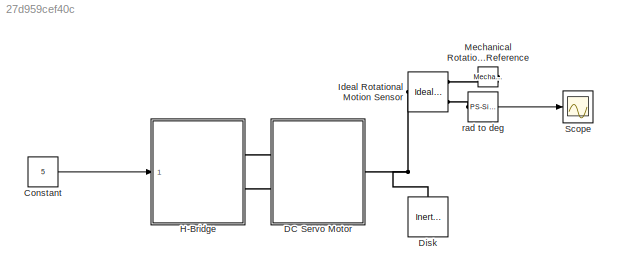
MODEL slx_27d959cef40c
KIND model
CONFIG AbsTol = auto
CONFIG EnableMultiTasking = off
CONFIG FixedStep = auto
CONFIG MaxStep = auto
CONFIG MinStep = auto
CONFIG RelTol = 1e-3
CONFIG SampleTimeConstraint = Unconstrained
CONFIG Solver = VariableStepAuto
CONFIG SolverName = VariableStepAuto
CONFIG StartTime = 0.0
CONFIG StopTime = 10
BLOCK [Constant] Constant
  Value = 5
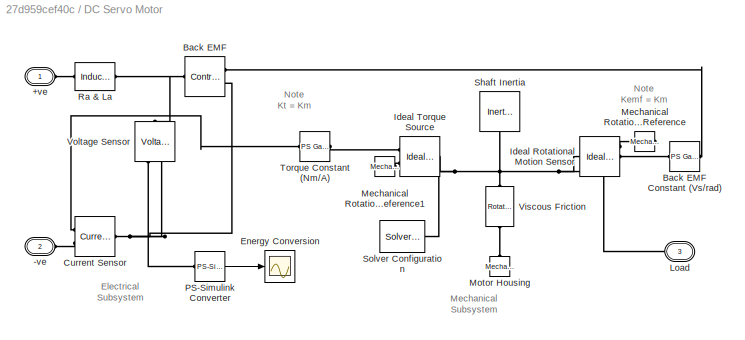
BLOCK [SubSystem] DC Servo Motor
  Ports = [0, 0, 0, 0, 0, 2, 1]
  RequestExecContextInheritance = off
BLOCK [PMIOPort] DC Servo Motor/+ve
  Side = Left
  Tag = PMCPort
BLOCK [PMIOPort] DC Servo Motor/-ve
  Port = 2
  Side = Left
  Tag = PMCPort
BLOCK [Reference] DC Servo Motor/Back EMF  REF=fl_lib/Electrical/Electrical Sources/Controlled Voltage
Source
  Ports = [0, 0, 0, 0, 0, 1, 2]
  SourceBlock = fl_lib/Electrical/Electrical Sources/Controlled Voltage\nSource
  SourceProductBaseCode = SS
  SourceProductName = Simscape
  SourceType = Controlled Voltage\nSource
BLOCK [Reference] DC Servo Motor/Back EMF Constant (Vs//rad)  REF=fl_ps_legacy_lib/Legacy Physical
Signals/Functions/PS Gain
  Ports = [0, 0, 0, 0, 0, 1, 1]
  SourceBlock = fl_ps_legacy_lib/Legacy Physical\nSignals/Functions/PS Gain
  SourceProductBaseCode = SS
  SourceProductName = Simscape
  SourceType = PS Gain
BLOCK [Reference] DC Servo Motor/Current Sensor  REF=fl_lib/Electrical/Electrical Sensors/Current Sensor
  Ports = [0, 0, 0, 0, 0, 1, 2]
  SourceBlock = fl_lib/Electrical/Electrical Sensors/Current Sensor
  SourceProductBaseCode = SS
  SourceProductName = Simscape
  SourceType = Current Sensor
BLOCK [Scope] DC Servo Motor/Energy Conversion
  Floating = off
  NumInputPorts = 1
  Ports = [1]
  ScopeSpecificationString = Simulink.scopes.TimeScopeBlockCfg('CurrentConfiguration', extmgr.ConfigurationSet(extmgr.Configuration('Core','General UI',true),extmgr.Configuration('Core','Source UI',true),extmgr.Configuration('Sources','WiredSimulink',true,'DataLoggingVariableName','ScopeData11','DataLoggingSaveFormat','StructureWithTime','DataLoggingDecimation','1','DataLoggingDecimateData',true),extmgr.Configuration('Visuals...<+1727ch>
BLOCK [Reference] DC Servo Motor/Ideal Rotational Motion Sensor  REF=fl_lib/Mechanical/Mechanical Sensors/Ideal Rotational
Motion Sensor
  Ports = [0, 0, 0, 0, 0, 1, 3]
  SourceBlock = fl_lib/Mechanical/Mechanical Sensors/Ideal Rotational\nMotion Sensor
  SourceProductBaseCode = SS
  SourceProductName = Simscape
  SourceType = Ideal Rotational\nMotion Sensor
BLOCK [Reference] DC Servo Motor/Ideal Torque Source  REF=fl_lib/Mechanical/Mechanical Sources/Ideal Torque Source
  Ports = [0, 0, 0, 0, 0, 1, 2]
  SourceBlock = fl_lib/Mechanical/Mechanical Sources/Ideal Torque Source
  SourceProductBaseCode = SS
  SourceProductName = Simscape
  SourceType = Ideal Torque Source
BLOCK [PMIOPort] DC Servo Motor/Load
  Port = 3
  Side = Right
BLOCK [Reference] DC Servo Motor/Mechanical Rotational Reference  REF=fl_lib/Mechanical/Rotational Elements/Mechanical
Rotational Reference
  Ports = [0, 0, 0, 0, 0, 1]
  SourceBlock = fl_lib/Mechanical/Rotational Elements/Mechanical\nRotational Reference
  SourceProductBaseCode = SS
  SourceProductName = Simscape
  SourceType = Mechanical\nRotational Reference
BLOCK [Reference] DC Servo Motor/Mechanical Rotational Reference1  REF=fl_lib/Mechanical/Rotational Elements/Mechanical
Rotational Reference
  Ports = [0, 0, 0, 0, 0, 1]
  SourceBlock = fl_lib/Mechanical/Rotational Elements/Mechanical\nRotational Reference
  SourceProductBaseCode = SS
  SourceProductName = Simscape
  SourceType = Mechanical\nRotational Reference
BLOCK [Reference] DC Servo Motor/Motor Housing  REF=fl_lib/Mechanical/Rotational Elements/Mechanical
Rotational Reference
  Ports = [0, 0, 0, 0, 0, 1]
  SourceBlock = fl_lib/Mechanical/Rotational Elements/Mechanical\nRotational Reference
  SourceProductBaseCode = SS
  SourceProductName = Simscape
  SourceType = Mechanical\nRotational Reference
BLOCK [Reference] DC Servo Motor/PS-Simulink Converter  REF=nesl_utility/PS-Simulink
Converter
  Ports = [0, 1, 0, 0, 0, 1]
  SourceBlock = nesl_utility/PS-Simulink\nConverter
  SourceProductBaseCode = SS
  SourceProductName = Simscape
  SourceType = PS-Simulink\nConverter
BLOCK [Reference] DC Servo Motor/Ra & La  REF=fl_lib/Electrical/Electrical Elements/Inductor
  Ports = [0, 0, 0, 0, 0, 1, 1]
  SourceBlock = fl_lib/Electrical/Electrical Elements/Inductor
  SourceProductBaseCode = SS
  SourceProductName = Simscape
  SourceType = Inductor
BLOCK [Reference] DC Servo Motor/Shaft Inertia  REF=fl_lib/Mechanical/Rotational Elements/Inertia
  Ports = [0, 0, 0, 0, 0, 1]
  SourceBlock = fl_lib/Mechanical/Rotational Elements/Inertia
  SourceProductBaseCode = SS
  SourceProductName = Simscape
  SourceType = Inertia
BLOCK [Reference] DC Servo Motor/Solver Configuration  REF=nesl_utility/Solver
Configuration
  Ports = [0, 0, 0, 0, 0, 0, 1]
  SourceBlock = nesl_utility/Solver\nConfiguration
  SourceProductBaseCode = SS
  SourceProductName = Simscape
  SourceType = Solver\nConfiguration
BLOCK [Reference] DC Servo Motor/Torque Constant (Nm//A)  REF=fl_ps_legacy_lib/Legacy Physical
Signals/Functions/PS Gain
  Ports = [0, 0, 0, 0, 0, 1, 1]
  SourceBlock = fl_ps_legacy_lib/Legacy Physical\nSignals/Functions/PS Gain
  SourceProductBaseCode = SS
  SourceProductName = Simscape
  SourceType = PS Gain
BLOCK [Reference] DC Servo Motor/Viscous Friction  REF=fl_lib/Mechanical/Rotational Elements/Rotational Damper
  Ports = [0, 0, 0, 0, 0, 1, 1]
  SourceBlock = fl_lib/Mechanical/Rotational Elements/Rotational Damper
  SourceProductBaseCode = SS
  SourceProductName = Simscape
  SourceType = Rotational Damper
BLOCK [Reference] DC Servo Motor/Voltage Sensor  REF=fl_lib/Electrical/Electrical Sensors/Voltage Sensor
  Ports = [0, 0, 0, 0, 0, 1, 2]
  SourceBlock = fl_lib/Electrical/Electrical Sensors/Voltage Sensor
  SourceProductBaseCode = SS
  SourceProductName = Simscape
  SourceType = Voltage Sensor
BLOCK [Reference] Disk  REF=fl_lib/Mechanical/Rotational Elements/Inertia
  Ports = [0, 0, 0, 0, 0, 1]
  SourceBlock = fl_lib/Mechanical/Rotational Elements/Inertia
  SourceProductBaseCode = SS
  SourceProductName = Simscape
  SourceType = Inertia
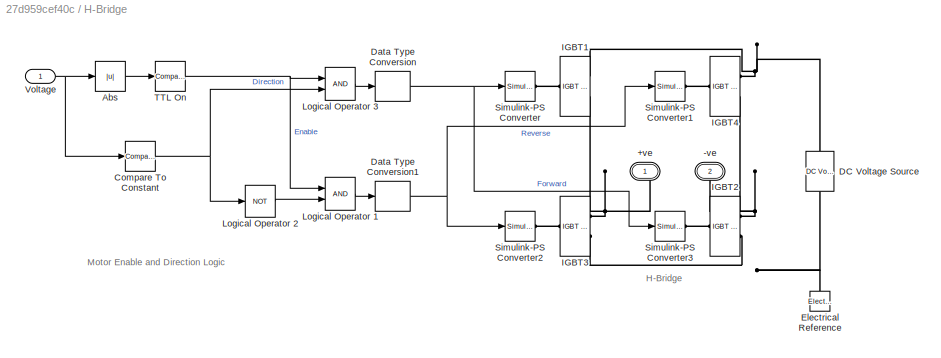
BLOCK [SubSystem] H-Bridge
  Ports = [1, 0, 0, 0, 0, 0, 2]
  RequestExecContextInheritance = off
BLOCK [PMIOPort] H-Bridge/+ve
  Side = Right
  Tag = PMCPort
BLOCK [PMIOPort] H-Bridge/-ve
  Port = 2
  Side = Right
  Tag = PMCPort
BLOCK [Abs] H-Bridge/Abs
  SaturateOnIntegerOverflow = off
BLOCK [Reference] H-Bridge/Compare To Constant  REF=simulink/Logic and Bit
Operations/Compare
To Constant
  Ports = [1, 1]
  SourceBlock = simulink/Logic and Bit\nOperations/Compare\nTo Constant
  SourceProductBaseCode = SL
  SourceProductName = Simulink
  SourceType = Compare To Constant
BLOCK [Reference] H-Bridge/DC Voltage Source  REF=fl_lib/Electrical/Electrical Sources/DC Voltage Source
  Ports = [0, 0, 0, 0, 0, 1, 1]
  SourceBlock = fl_lib/Electrical/Electrical Sources/DC Voltage Source
  SourceProductBaseCode = SS
  SourceProductName = Simscape
  SourceType = DC Voltage Source
BLOCK [DataTypeConversion] H-Bridge/Data Type Conversion
  OutDataTypeStr = double
  RndMeth = Floor
  SaturateOnIntegerOverflow = off
BLOCK [DataTypeConversion] H-Bridge/Data Type Conversion1
  OutDataTypeStr = double
  RndMeth = Floor
  SaturateOnIntegerOverflow = off
BLOCK [Reference] H-Bridge/Electrical Reference  REF=fl_lib/Electrical/Electrical Elements/Electrical Reference
  Ports = [0, 0, 0, 0, 0, 1]
  SourceBlock = fl_lib/Electrical/Electrical Elements/Electrical Reference
  SourceProductBaseCode = SS
  SourceProductName = Simscape
  SourceType = Electrical Reference
BLOCK [Reference] H-Bridge/IGBT1  REF=ee_lib/Semiconductors &
Converters/IGBT
(Ideal,
Switching)
  Ports = [0, 0, 0, 0, 0, 1, 2]
  SourceBlock = ee_lib/Semiconductors &\nConverters/IGBT\n(Ideal,\nSwitching)
  SourceProductBaseCode = PS
  SourceProductName = Simscape Electrical
  SourceType = IGBT\n(Ideal,\nSwitching)
BLOCK [Reference] H-Bridge/IGBT2  REF=ee_lib/Semiconductors &
Converters/IGBT
(Ideal,
Switching)
  Ports = [0, 0, 0, 0, 0, 1, 2]
  SourceBlock = ee_lib/Semiconductors &\nConverters/IGBT\n(Ideal,\nSwitching)
  SourceProductBaseCode = PS
  SourceProductName = Simscape Electrical
  SourceType = IGBT\n(Ideal,\nSwitching)
BLOCK [Reference] H-Bridge/IGBT3  REF=ee_lib/Semiconductors &
Converters/IGBT
(Ideal,
Switching)
  Ports = [0, 0, 0, 0, 0, 1, 2]
  SourceBlock = ee_lib/Semiconductors &\nConverters/IGBT\n(Ideal,\nSwitching)
  SourceProductBaseCode = PS
  SourceProductName = Simscape Electrical
  SourceType = IGBT\n(Ideal,\nSwitching)
BLOCK [Reference] H-Bridge/IGBT4  REF=ee_lib/Semiconductors &
Converters/IGBT
(Ideal,
Switching)
  Ports = [0, 0, 0, 0, 0, 1, 2]
  SourceBlock = ee_lib/Semiconductors &\nConverters/IGBT\n(Ideal,\nSwitching)
  SourceProductBaseCode = PS
  SourceProductName = Simscape Electrical
  SourceType = IGBT\n(Ideal,\nSwitching)
BLOCK [Logic] H-Bridge/Logical Operator 1
  AllPortsSameDT = off
  OutDataTypeStr = boolean
  Ports = [2, 1]
BLOCK [Logic] H-Bridge/Logical Operator 2
  AllPortsSameDT = off
  Operator = NOT
  OutDataTypeStr = boolean
  Ports = [1, 1]
BLOCK [Logic] H-Bridge/Logical Operator 3
  AllPortsSameDT = off
  OutDataTypeStr = boolean
  Ports = [2, 1]
BLOCK [Reference] H-Bridge/Simulink-PS Converter  REF=nesl_utility/Simulink-PS
Converter
  Ports = [1, 0, 0, 0, 0, 0, 1]
  SourceBlock = nesl_utility/Simulink-PS\nConverter
  SourceProductBaseCode = SS
  SourceProductName = Simscape
  SourceType = Simulink-PS\nConverter
BLOCK [Reference] H-Bridge/Simulink-PS Converter1  REF=nesl_utility/Simulink-PS
Converter
  Ports = [1, 0, 0, 0, 0, 0, 1]
  SourceBlock = nesl_utility/Simulink-PS\nConverter
  SourceProductBaseCode = SS
  SourceProductName = Simscape
  SourceType = Simulink-PS\nConverter
BLOCK [Reference] H-Bridge/Simulink-PS Converter2  REF=nesl_utility/Simulink-PS
Converter
  Ports = [1, 0, 0, 0, 0, 0, 1]
  SourceBlock = nesl_utility/Simulink-PS\nConverter
  SourceProductBaseCode = SS
  SourceProductName = Simscape
  SourceType = Simulink-PS\nConverter
BLOCK [Reference] H-Bridge/Simulink-PS Converter3  REF=nesl_utility/Simulink-PS
Converter
  Ports = [1, 0, 0, 0, 0, 0, 1]
  SourceBlock = nesl_utility/Simulink-PS\nConverter
  SourceProductBaseCode = SS
  SourceProductName = Simscape
  SourceType = Simulink-PS\nConverter
BLOCK [Reference] H-Bridge/TTL On  REF=simulink/Logic and Bit
Operations/Compare
To Constant
  Ports = [1, 1]
  SourceBlock = simulink/Logic and Bit\nOperations/Compare\nTo Constant
  SourceProductBaseCode = SL
  SourceProductName = Simulink
  SourceType = Compare To Constant
BLOCK [Inport] H-Bridge/Voltage
  IconDisplay = Port number
BLOCK [Reference] Ideal Rotational Motion Sensor  REF=fl_lib/Mechanical/Mechanical Sensors/Ideal Rotational
Motion Sensor
  Ports = [0, 0, 0, 0, 0, 1, 3]
  SourceBlock = fl_lib/Mechanical/Mechanical Sensors/Ideal Rotational\nMotion Sensor
  SourceProductBaseCode = SS
  SourceProductName = Simscape
  SourceType = Ideal Rotational\nMotion Sensor
BLOCK [Reference] Mechanical Rotational Reference  REF=fl_lib/Mechanical/Rotational Elements/Mechanical
Rotational Reference
  Ports = [0, 0, 0, 0, 0, 1]
  SourceBlock = fl_lib/Mechanical/Rotational Elements/Mechanical\nRotational Reference
  SourceProductBaseCode = SS
  SourceProductName = Simscape
  SourceType = Mechanical\nRotational Reference
BLOCK [Scope] Scope
  Floating = off
  NumInputPorts = 1
  Ports = [1]
  ScopeSpecificationString = Simulink.scopes.TimeScopeBlockCfg('CurrentConfiguration', extmgr.ConfigurationSet(extmgr.Configuration('Core','General UI',true),extmgr.Configuration('Core','Source UI',true),extmgr.Configuration('Sources','WiredSimulink',true,'DataLoggingVariableName','ScopeData1','DataLoggingSaveFormat','StructureWithTime','DataLoggingDecimation','1','DataLoggingDecimateData',true),extmgr.Configuration('Visuals'...<+1703ch>
BLOCK [Reference] rad to deg  REF=nesl_utility/PS-Simulink
Converter
  Ports = [0, 1, 0, 0, 0, 1]
  SourceBlock = nesl_utility/PS-Simulink\nConverter
  SourceProductBaseCode = SS
  SourceProductName = Simscape
  SourceType = PS-Simulink\nConverter
ANNOTATION DC Servo Motor: Electrical Subsystem
ANNOTATION DC Servo Motor: Mechanical Subsystem
ANNOTATION DC Servo Motor: Note Kemf = Km
ANNOTATION DC Servo Motor: Note Kt = Km
ANNOTATION H-Bridge: H-Bridge
ANNOTATION H-Bridge: Motor Enable and Direction Logic
LINE Constant:1 -> H-Bridge:1
LINE DC Servo Motor/PS-Simulink Converter:1 -> DC Servo Motor/Energy Conversion:1
LINE H-Bridge/Abs:1 -> H-Bridge/TTL On:1
NET H-Bridge/Compare To Constant:1 -> H-Bridge/Logical Operator 2:1, H-Bridge/Logical Operator 3:2
NET H-Bridge/Data Type Conversion1:1 -> H-Bridge/Simulink-PS Converter1:1, H-Bridge/Simulink-PS Converter2:1
NET H-Bridge/Data Type Conversion:1 -> H-Bridge/Simulink-PS Converter3:1, H-Bridge/Simulink-PS Converter:1
LINE H-Bridge/Logical Operator 1:1 -> H-Bridge/Data Type Conversion1:1
LINE H-Bridge/Logical Operator 2:1 -> H-Bridge/Logical Operator 1:2
LINE H-Bridge/Logical Operator 3:1 -> H-Bridge/Data Type Conversion:1
NET H-Bridge/TTL On:1 -> H-Bridge/Logical Operator 1:1, H-Bridge/Logical Operator 3:1
NET H-Bridge/Voltage:1 -> H-Bridge/Abs:1, H-Bridge/Compare To Constant:1
LINE rad to deg:1 -> Scope:1
PLINE DC Servo Motor/+ve:RConn1 -- DC Servo Motor/Ra & La:LConn1
PLINE DC Servo Motor/-ve:RConn1 -- DC Servo Motor/Current Sensor:RConn2
PLINE DC Servo Motor/Back EMF Constant (Vs//rad):LConn1 -- DC Servo Motor/Ideal Rotational Motion Sensor:RConn2
PLINE DC Servo Motor/Back EMF Constant (Vs//rad):RConn1 -- DC Servo Motor/Back EMF:RConn1
PNET net1: DC Servo Motor/Back EMF:LConn1 -- DC Servo Motor/Ra & La:RConn1 -- DC Servo Motor/Voltage Sensor:LConn1
PNET net2: DC Servo Motor/Back EMF:RConn2 -- DC Servo Motor/Current Sensor:LConn1 -- DC Servo Motor/Voltage Sensor:RConn2
PLINE DC Servo Motor/Current Sensor:RConn1 -- DC Servo Motor/Torque Constant (Nm//A):LConn1
PNET net3: DC Servo Motor/Ideal Rotational Motion Sensor:LConn1 -- DC Servo Motor/Ideal Torque Source:LConn1 -- DC Servo Motor/Load:RConn1 -- DC Servo Motor/Shaft Inertia:LConn1 -- DC Servo Motor/Solver Configuration:RConn1 -- DC Servo Motor/Viscous Friction:RConn1
PLINE DC Servo Motor/Ideal Rotational Motion Sensor:RConn1 -- DC Servo Motor/Mechanical Rotational Reference:LConn1
PLINE DC Servo Motor/Ideal Torque Source:RConn1 -- DC Servo Motor/Torque Constant (Nm//A):RConn1
PLINE DC Servo Motor/Ideal Torque Source:RConn2 -- DC Servo Motor/Mechanical Rotational Reference1:LConn1
PLINE DC Servo Motor/Motor Housing:LConn1 -- DC Servo Motor/Viscous Friction:LConn1
PLINE DC Servo Motor/PS-Simulink Converter:LConn1 -- DC Servo Motor/Voltage Sensor:RConn1
PLINE DC Servo Motor:LConn1 -- H-Bridge:RConn1
PLINE DC Servo Motor:LConn2 -- H-Bridge:RConn2
PNET net4: DC Servo Motor:RConn1 -- Disk:LConn1 -- Ideal Rotational Motion Sensor:LConn1
PNET net5: H-Bridge/+ve:RConn1 -- H-Bridge/IGBT1:RConn2 -- H-Bridge/IGBT3:RConn1
PNET net6: H-Bridge/-ve:RConn1 -- H-Bridge/IGBT2:RConn1 -- H-Bridge/IGBT4:RConn2
PNET net7: H-Bridge/DC Voltage Source:LConn1 -- H-Bridge/IGBT1:RConn1 -- H-Bridge/IGBT4:RConn1
PNET net8: H-Bridge/DC Voltage Source:RConn1 -- H-Bridge/Electrical Reference:LConn1 -- H-Bridge/IGBT2:RConn2 -- H-Bridge/IGBT3:RConn2
PLINE H-Bridge/IGBT1:LConn1 -- H-Bridge/Simulink-PS Converter:RConn1
PLINE H-Bridge/IGBT2:LConn1 -- H-Bridge/Simulink-PS Converter3:RConn1
PLINE H-Bridge/IGBT3:LConn1 -- H-Bridge/Simulink-PS Converter2:RConn1
PLINE H-Bridge/IGBT4:LConn1 -- H-Bridge/Simulink-PS Converter1:RConn1
PLINE Ideal Rotational Motion Sensor:RConn1 -- Mechanical Rotational Reference:LConn1
PLINE Ideal Rotational Motion Sensor:RConn3 -- rad to deg:LConn1
note: NET lines group one-source signal fan-out (src -> all destinations, sorted); 1:1 wires keep LINE; PNET lines group multi-terminal physical nets as a canonical sorted terminal list (undirected conserving connections); 2-terminal nets keep the pairwise PLINE form
